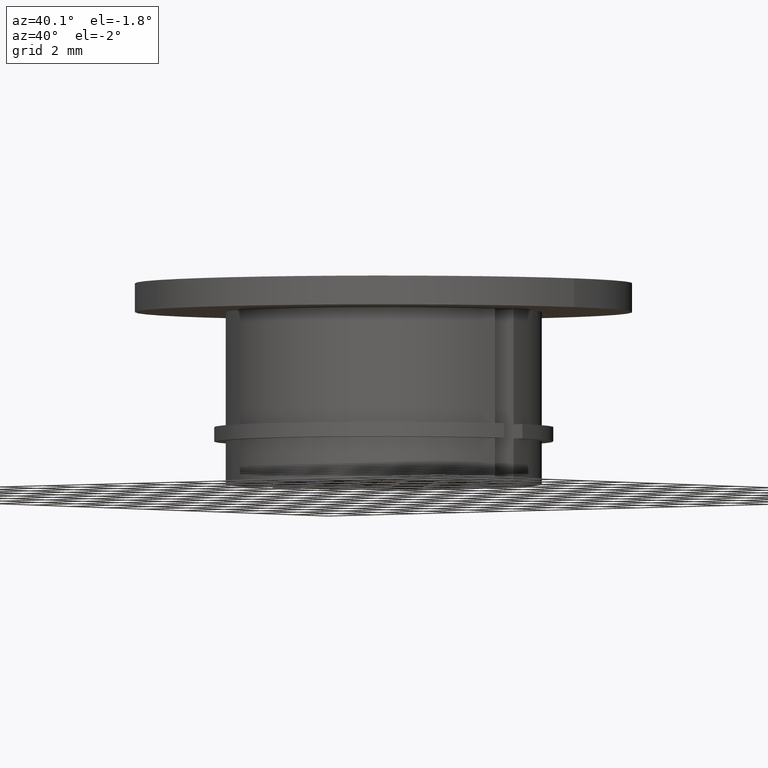
[diagram: clean part render]
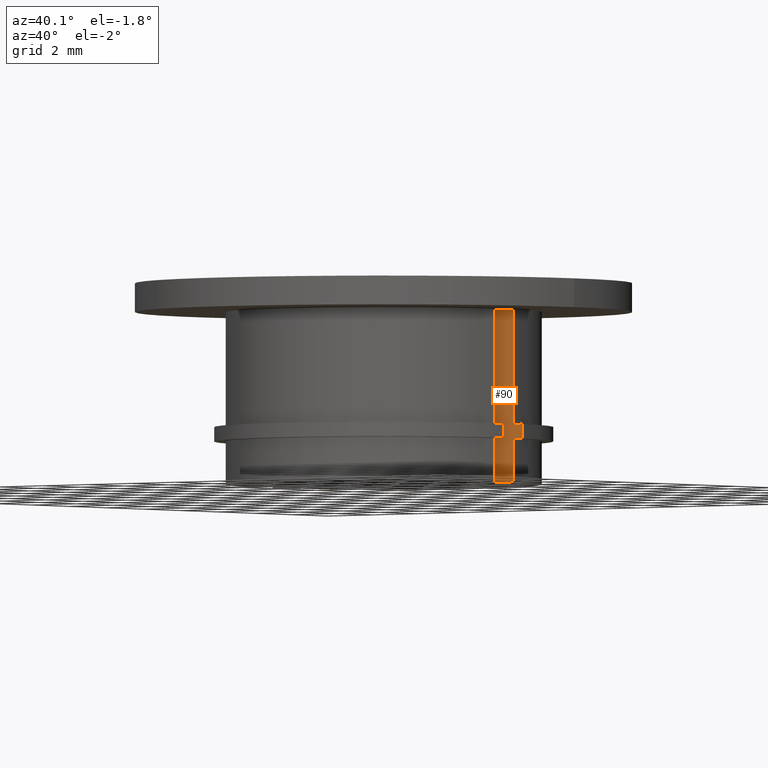
[diagram: same view with one face highlighted and labeled with its STEP entity id]
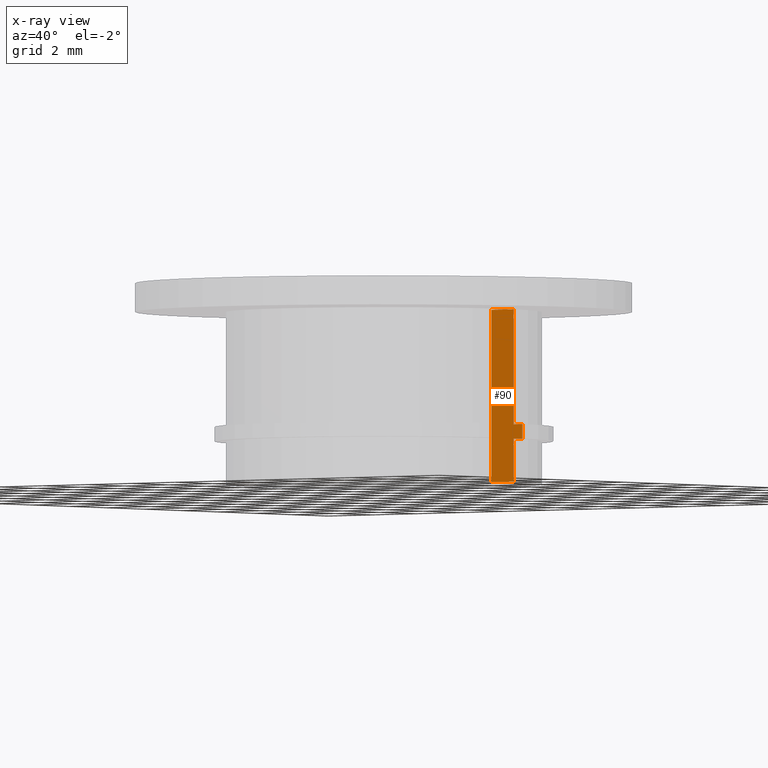
[diagram: x-ray of the same camera — body ghosted, the highlighted face saturated]
A machine part, auxiliary view. The second image highlights one B-rep face of the part: STEP entity #90.
The next image is the same camera in x-ray: the body ghosted, the highlighted face saturated — about 0% of this face is hidden behind the body in this view.
In plain terms, the highlighted planar face has unit normal (0, -1, 0).
Its self-contained STEP definition (entity closure, byte-faithful):
#90 = ADVANCED_FACE( '', ( #132 ), #133, .T. );
#132 = FACE_OUTER_BOUND( '', #182, .T. );
#133 = PLANE( '', #183 );
#182 = EDGE_LOOP( '', ( #320, #321, #322, #323, #324, #325, #326, #327, #328 ) );
#183 = AXIS2_PLACEMENT_3D( '', #329, #330, #331 );
#320 = ORIENTED_EDGE( '', *, *, #433, .T. );
#321 = ORIENTED_EDGE( '', *, *, #436, .T. );
#322 = ORIENTED_EDGE( '', *, *, #437, .T. );
#323 = ORIENTED_EDGE( '', *, *, #438, .T. );
#324 = ORIENTED_EDGE( '', *, *, #439, .T. );
#325 = ORIENTED_EDGE( '', *, *, #427, .T. );
#326 = ORIENTED_EDGE( '', *, *, #399, .F. );
#327 = ORIENTED_EDGE( '', *, *, #435, .F. );
#328 = ORIENTED_EDGE( '', *, *, #390, .F. );
#329 = CARTESIAN_POINT( '', ( 4.47213595499958, 0.500000000000004, -6.00000000017099 ) );
#330 = DIRECTION( '', ( 1.83253142170860E-016, -1.00000000000000, 1.12206481130175E-032 ) );
#331 = DIRECTION( '', ( -1.00000000000000, -1.83253142170860E-016, -6.12303176911189E-017 ) );
#390 = EDGE_CURVE( '', #449, #451, #452, .T. );
#399 = EDGE_CURVE( '', #467, #454, #469, .T. );
#427 = EDGE_CURVE( '', #517, #454, #518, .T. );
#433 = EDGE_CURVE( '', #449, #524, #526, .T. );
#435 = EDGE_CURVE( '', #451, #467, #528, .T. );
#436 = EDGE_CURVE( '', #524, #529, #530, .T. );
#437 = EDGE_CURVE( '', #529, #531, #532, .T. );
#438 = EDGE_CURVE( '', #531, #533, #534, .T. );
#439 = EDGE_CURVE( '', #533, #517, #535, .T. );
#449 = VERTEX_POINT( '', #546 );
#451 = VERTEX_POINT( '', #548 );
#452 = LINE( '', #549, #550 );
#454 = VERTEX_POINT( '', #552 );
#467 = VERTEX_POINT( '', #568 );
#469 = LINE( '', #570, #571 );
#517 = VERTEX_POINT( '', #642 );
#518 = LINE( '', #643, #644 );
#524 = VERTEX_POINT( '', #650 );
#526 = LINE( '', #652, #653 );
#528 = LINE( '', #655, #656 );
#529 = VERTEX_POINT( '', #657 );
#530 = LINE( '', #658, #659 );
#531 = VERTEX_POINT( '', #660 );
#532 = LINE( '', #661, #662 );
#533 = VERTEX_POINT( '', #663 );
#534 = LINE( '', #664, #665 );
#535 = LINE( '', #666, #667 );
#546 = CARTESIAN_POINT( '', ( 4.47213595499958, 0.500000000000004, 1.73472347597681E-015 ) );
#548 = CARTESIAN_POINT( '', ( 4.47213595499958, 0.500000000000004, 5.00000000000000 ) );
#549 = CARTESIAN_POINT( '', ( 4.47213595499958, 0.500000000000004, -6.00000000017099 ) );
#550 = VECTOR( '', #678, 1000.00000000000 );
#552 = CARTESIAN_POINT( '', ( 5.47722557505166, 0.500000000000004, 6.00000000000000 ) );
#568 = CARTESIAN_POINT( '', ( 4.47213595499958, 0.500000000000004, 6.00000000000000 ) );
#570 = CARTESIAN_POINT( '', ( 4.47213595499958, 0.500000000000004, 6.00000000000000 ) );
#571 = VECTOR( '', #697, 1000.00000000000 );
#642 = CARTESIAN_POINT( '', ( 5.47722557505166, 0.500000000000004, 2.00000000000000 ) );
#643 = CARTESIAN_POINT( '', ( 5.47722557505166, 0.500000000000004, 6.00000000000000 ) );
#644 = VECTOR( '', #733, 1000.00000000000 );
#650 = CARTESIAN_POINT( '', ( 5.47722557505166, 0.500000000000004, 0.000000000000000 ) );
#652 = CARTESIAN_POINT( '', ( 1.10039447483015E-015, 0.500000000000003, 1.73472347597681E-015 ) );
#653 = VECTOR( '', #749, 1000.00000000000 );
#655 = CARTESIAN_POINT( '', ( 4.47213595499958, 0.500000000000004, -6.00000000017099 ) );
#656 = VECTOR( '', #753, 1000.00000000000 );
#657 = CARTESIAN_POINT( '', ( 5.47722557505166, 0.500000000000004, 1.50000000000000 ) );
#658 = CARTESIAN_POINT( '', ( 5.47722557505166, 0.500000000000004, 6.00000000000000 ) );
#659 = VECTOR( '', #754, 1000.00000000000 );
#660 = CARTESIAN_POINT( '', ( 5.87877538267963, 0.500000000000004, 1.50000000000000 ) );
#661 = CARTESIAN_POINT( '', ( 1.19180214046433E-015, 0.500000000000003, 1.50000000000000 ) );
#662 = VECTOR( '', #755, 1000.00000000000 );
#663 = CARTESIAN_POINT( '', ( 5.87877538267963, 0.500000000000004, 1.99999999999999 ) );
#664 = CARTESIAN_POINT( '', ( 5.87877538267963, 0.500000000000004, -6.00000000017099 ) );
#665 = VECTOR( '', #756, 1000.00000000000 );
#666 = CARTESIAN_POINT( '', ( 1.23448823848712E-015, 0.500000000000003, 1.99999999999999 ) );
#667 = VECTOR( '', #757, 1000.00000000000 );
#678 = DIRECTION( '', ( -6.12303176911189E-017, 0.000000000000000, 1.00000000000000 ) );
#697 = DIRECTION( '', ( 1.00000000000000, 1.83253142170860E-016, 6.12303176911189E-017 ) );
#733 = DIRECTION( '', ( -6.12303176911189E-017, 0.000000000000000, 1.00000000000000 ) );
#749 = DIRECTION( '', ( 1.00000000000000, 1.83253142170860E-016, 6.12303176911189E-017 ) );
#753 = DIRECTION( '', ( -6.12303176911189E-017, 0.000000000000000, 1.00000000000000 ) );
#754 = DIRECTION( '', ( -6.12303176911189E-017, 0.000000000000000, 1.00000000000000 ) );
#755 = DIRECTION( '', ( 1.00000000000000, 1.83253142170860E-016, 6.12303176911189E-017 ) );
#756 = DIRECTION( '', ( -6.12303176911189E-017, 0.000000000000000, 1.00000000000000 ) );
#757 = DIRECTION( '', ( -1.00000000000000, -1.83253142170860E-016, -6.12303176911189E-017 ) );